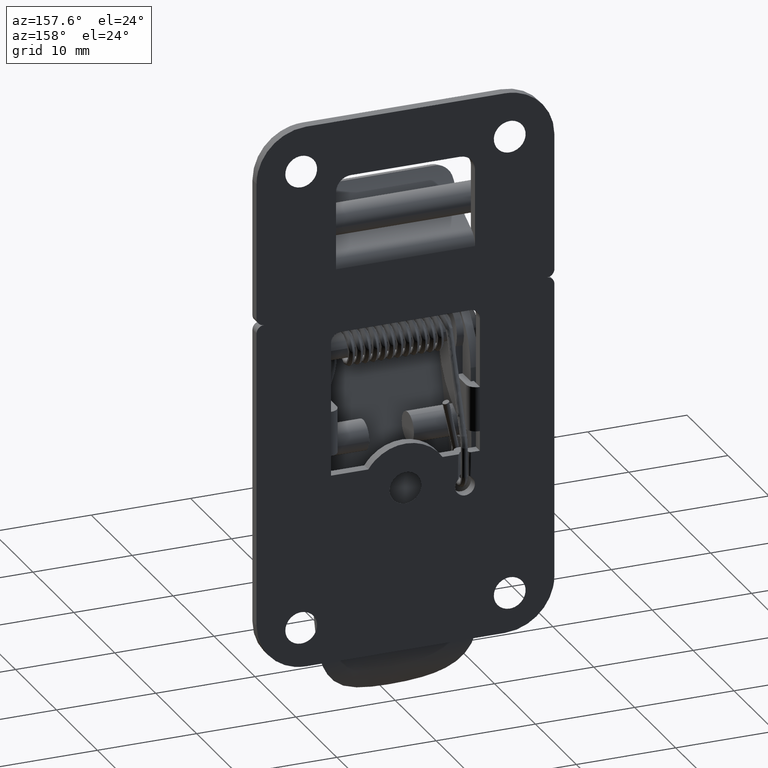
[diagram: clean part render]
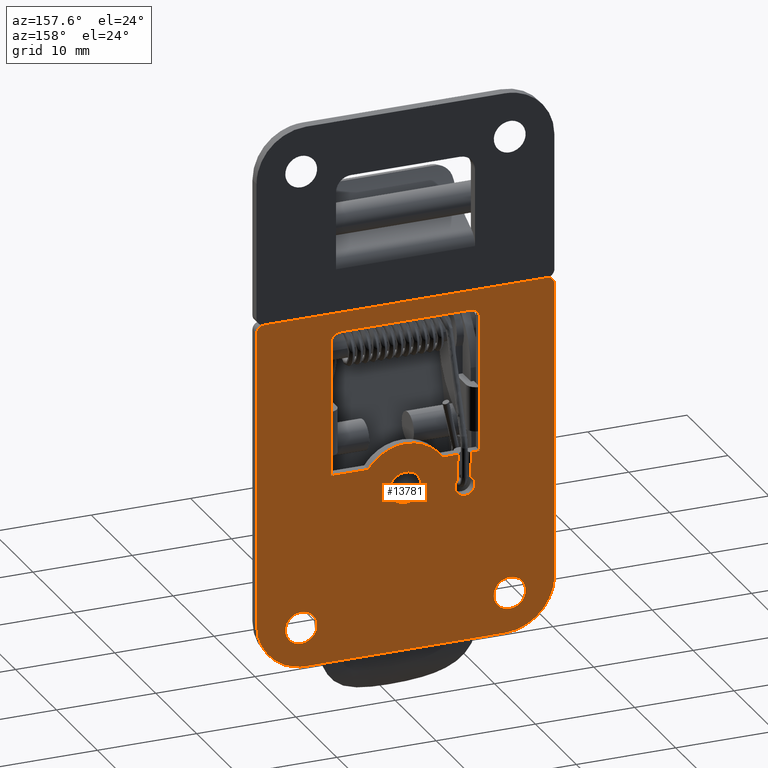
[diagram: same view with one face highlighted and labeled with its STEP entity id]
A machine part, auxiliary view. The second image highlights one B-rep face of the part: STEP entity #13781.
In plain terms, the highlighted face is a freeform B-spline surface patch.
Its self-contained STEP definition (entity closure, byte-faithful):
#11250=CARTESIAN_POINT('',(2.499999999892836,-1.597015677532759,-27.480444664066582));
#11251=VERTEX_POINT('',#11250);
#11257=CARTESIAN_POINT('',(2.500000000000000,0.0,-28.982766999999999));
#11258=VERTEX_POINT('',#11257);
#11259=CARTESIAN_POINT('',(2.500000000000000,0.0,-28.982766999999999));
#11260=CARTESIAN_POINT('',(2.500000000000000,-1.505129705530276,-28.982766999999992));
#11261=CARTESIAN_POINT('',(2.499999999892836,-1.597015677532759,-27.480444664066582));
#11269=(BOUNDED_CURVE()B_SPLINE_CURVE(2,(#11259,#11260,#11261),.UNSPECIFIED.,.F.,.U.)B_SPLINE_CURVE_WITH_KNOTS((3,3),(0.500000000000000,0.739332962068175),.UNSPECIFIED.)CURVE()GEOMETRIC_REPRESENTATION_ITEM()RATIONAL_B_SPLINE_CURVE((1.0,0.719603993486777,0.976072041300730))REPRESENTATION_ITEM(''));
#11270=EDGE_CURVE('',#11258,#11251,#11269,.T.);
#11272=CARTESIAN_POINT('',(2.499999999986664,1.588815242182591,-27.193912224442300));
#11273=VERTEX_POINT('',#11272);
#11274=CARTESIAN_POINT('',(2.499999999986664,1.588815242182591,-27.193912224442297));
#11275=CARTESIAN_POINT('',(2.500000000000000,1.600000000000000,-27.288008408450523));
#11276=CARTESIAN_POINT('',(2.500000000000000,1.600000000000000,-27.382767000000001));
#11277=CARTESIAN_POINT('',(2.500000000000000,1.600000000000000,-28.982766999999996));
#11278=CARTESIAN_POINT('',(2.500000000000000,0.0,-28.982766999999999));
#11286=(BOUNDED_CURVE()B_SPLINE_CURVE(2,(#11274,#11275,#11276,#11277,#11278),.UNSPECIFIED.,.F.,.U.)B_SPLINE_CURVE_WITH_KNOTS((3,2,3),(0.229562473493241,0.250000000000000,0.500000000000000),.UNSPECIFIED.)CURVE()GEOMETRIC_REPRESENTATION_ITEM()RATIONAL_B_SPLINE_CURVE((0.956026754143974,0.976055948307400,1.0,0.707106781186548,1.0))REPRESENTATION_ITEM(''));
#11287=EDGE_CURVE('',#11273,#11258,#11286,.T.);
#11331=CARTESIAN_POINT('',(2.500000000000000,0.0,-25.782767000000000));
#11332=VERTEX_POINT('',#11331);
#11333=CARTESIAN_POINT('',(2.500000000000000,0.0,-25.782767000000000));
#11334=CARTESIAN_POINT('',(2.500000000000000,1.421079241332479,-25.782767000000000));
#11335=CARTESIAN_POINT('',(2.499999999986664,1.588815242182591,-27.193912224442297));
#11343=(BOUNDED_CURVE()B_SPLINE_CURVE(2,(#11333,#11334,#11335),.UNSPECIFIED.,.F.,.U.)B_SPLINE_CURVE_WITH_KNOTS((3,3),(0.0,0.229562473493241),.UNSPECIFIED.)CURVE()GEOMETRIC_REPRESENTATION_ITEM()RATIONAL_B_SPLINE_CURVE((1.0,0.731050832879148,0.956026754143974))REPRESENTATION_ITEM(''));
#11344=EDGE_CURVE('',#11332,#11273,#11343,.T.);
#11346=CARTESIAN_POINT('',(2.499999999892836,-1.597015677532759,-27.480444664066578));
#11347=CARTESIAN_POINT('',(2.499999999999999,-1.600000000000000,-27.431651422084265));
#11348=CARTESIAN_POINT('',(2.500000000000000,-1.600000000000000,-27.382767000000001));
#11349=CARTESIAN_POINT('',(2.500000000000000,-1.600000000000000,-25.782767000000003));
#11350=CARTESIAN_POINT('',(2.500000000000000,0.0,-25.782767000000000));
#11358=(BOUNDED_CURVE()B_SPLINE_CURVE(2,(#11346,#11347,#11348,#11349,#11350),.UNSPECIFIED.,.F.,.U.)B_SPLINE_CURVE_WITH_KNOTS((3,2,3),(0.739332962068176,0.750000000000000,1.0),.UNSPECIFIED.)CURVE()GEOMETRIC_REPRESENTATION_ITEM()RATIONAL_B_SPLINE_CURVE((0.976072041300732,0.987502787699771,1.0,0.707106781186548,1.0))REPRESENTATION_ITEM(''));
#11359=EDGE_CURVE('',#11251,#11332,#11358,.T.);
#11436=CARTESIAN_POINT('',(2.499999999892838,8.902984322467237,-39.980444664066582));
#11437=VERTEX_POINT('',#11436);
#11443=CARTESIAN_POINT('',(2.500000000000000,10.500000000000000,-41.482767000000003));
#11444=VERTEX_POINT('',#11443);
#11445=CARTESIAN_POINT('',(2.500000000000000,10.500000000000000,-41.482767000000003));
#11446=CARTESIAN_POINT('',(2.500000000000001,8.994870294469706,-41.482766999999988));
#11447=CARTESIAN_POINT('',(2.499999999892838,8.902984322467237,-39.980444664066582));
#11455=(BOUNDED_CURVE()B_SPLINE_CURVE(2,(#11445,#11446,#11447),.UNSPECIFIED.,.F.,.U.)B_SPLINE_CURVE_WITH_KNOTS((3,3),(0.500000000000000,0.739332962068177),.UNSPECIFIED.)CURVE()GEOMETRIC_REPRESENTATION_ITEM()RATIONAL_B_SPLINE_CURVE((1.0,0.719603993486775,0.976072041300734))REPRESENTATION_ITEM(''));
#11456=EDGE_CURVE('',#11444,#11437,#11455,.T.);
#11458=CARTESIAN_POINT('',(2.499999999986665,12.088815242182591,-39.693912224442322));
#11459=VERTEX_POINT('',#11458);
#11460=CARTESIAN_POINT('',(2.499999999986664,12.088815242182596,-39.693912224442315));
#11461=CARTESIAN_POINT('',(2.500000000000000,12.099999999999998,-39.788008408450530));
#11462=CARTESIAN_POINT('',(2.500000000000000,12.100000000000000,-39.882767000000001));
#11463=CARTESIAN_POINT('',(2.500000000000000,12.099999999999998,-41.482766999999988));
#11464=CARTESIAN_POINT('',(2.500000000000000,10.500000000000000,-41.482767000000003));
#11472=(BOUNDED_CURVE()B_SPLINE_CURVE(2,(#11460,#11461,#11462,#11463,#11464),.UNSPECIFIED.,.F.,.U.)B_SPLINE_CURVE_WITH_KNOTS((3,2,3),(0.229562473493243,0.250000000000000,0.500000000000000),.UNSPECIFIED.)CURVE()GEOMETRIC_REPRESENTATION_ITEM()RATIONAL_B_SPLINE_CURVE((0.956026754143978,0.976055948307403,1.0,0.707106781186548,1.0))REPRESENTATION_ITEM(''));
#11473=EDGE_CURVE('',#11459,#11444,#11472,.T.);
#11517=CARTESIAN_POINT('',(2.500000000000000,10.500000000000000,-38.282767000000000));
#11518=VERTEX_POINT('',#11517);
#11519=CARTESIAN_POINT('',(2.500000000000000,10.500000000000000,-38.282767000000000));
#11520=CARTESIAN_POINT('',(2.500000000000000,11.921079241332496,-38.282766999999993));
#11521=CARTESIAN_POINT('',(2.499999999986665,12.088815242182600,-39.693912224442315));
#11529=(BOUNDED_CURVE()B_SPLINE_CURVE(2,(#11519,#11520,#11521),.UNSPECIFIED.,.F.,.U.)B_SPLINE_CURVE_WITH_KNOTS((3,3),(0.0,0.229562473493243),.UNSPECIFIED.)CURVE()GEOMETRIC_REPRESENTATION_ITEM()RATIONAL_B_SPLINE_CURVE((1.0,0.731050832879145,0.956026754143978))REPRESENTATION_ITEM(''));
#11530=EDGE_CURVE('',#11518,#11459,#11529,.T.);
#11532=CARTESIAN_POINT('',(2.499999999892838,8.902984322467237,-39.980444664066589));
#11533=CARTESIAN_POINT('',(2.500000000000000,8.900000000000000,-39.931651422084272));
#11534=CARTESIAN_POINT('',(2.500000000000000,8.900000000000000,-39.882767000000001));
#11535=CARTESIAN_POINT('',(2.500000000000000,8.900000000000002,-38.282767000000007));
#11536=CARTESIAN_POINT('',(2.500000000000000,10.500000000000000,-38.282767000000000));
#11544=(BOUNDED_CURVE()B_SPLINE_CURVE(2,(#11532,#11533,#11534,#11535,#11536),.UNSPECIFIED.,.F.,.U.)B_SPLINE_CURVE_WITH_KNOTS((3,2,3),(0.739332962068176,0.750000000000000,1.0),.UNSPECIFIED.)CURVE()GEOMETRIC_REPRESENTATION_ITEM()RATIONAL_B_SPLINE_CURVE((0.976072041300732,0.987502787699772,1.0,0.707106781186548,1.0))REPRESENTATION_ITEM(''));
#11545=EDGE_CURVE('',#11437,#11518,#11544,.T.);
#11622=CARTESIAN_POINT('',(2.499999999892838,-12.097015677532760,-39.980444664066582));
#11623=VERTEX_POINT('',#11622);
#11629=CARTESIAN_POINT('',(2.500000000000000,-10.500000000000000,-41.482767000000003));
#11630=VERTEX_POINT('',#11629);
#11631=CARTESIAN_POINT('',(2.500000000000000,-10.500000000000000,-41.482767000000003));
#11632=CARTESIAN_POINT('',(2.500000000000001,-12.005129705530294,-41.482766999999988));
#11633=CARTESIAN_POINT('',(2.499999999892838,-12.097015677532761,-39.980444664066582));
#11641=(BOUNDED_CURVE()B_SPLINE_CURVE(2,(#11631,#11632,#11633),.UNSPECIFIED.,.F.,.U.)B_SPLINE_CURVE_WITH_KNOTS((3,3),(0.500000000000000,0.739332962068177),.UNSPECIFIED.)CURVE()GEOMETRIC_REPRESENTATION_ITEM()RATIONAL_B_SPLINE_CURVE((1.0,0.719603993486775,0.976072041300734))REPRESENTATION_ITEM(''));
#11642=EDGE_CURVE('',#11630,#11623,#11641,.T.);
#11644=CARTESIAN_POINT('',(2.499999999986665,-8.911184757817406,-39.693912224442322));
#11645=VERTEX_POINT('',#11644);
#11646=CARTESIAN_POINT('',(2.499999999986664,-8.911184757817406,-39.693912224442315));
#11647=CARTESIAN_POINT('',(2.500000000000000,-8.900000000000002,-39.788008408450530));
#11648=CARTESIAN_POINT('',(2.500000000000000,-8.900000000000000,-39.882767000000001));
#11649=CARTESIAN_POINT('',(2.500000000000000,-8.900000000000002,-41.482766999999988));
#11650=CARTESIAN_POINT('',(2.500000000000000,-10.500000000000000,-41.482767000000003));
#11658=(BOUNDED_CURVE()B_SPLINE_CURVE(2,(#11646,#11647,#11648,#11649,#11650),.UNSPECIFIED.,.F.,.U.)B_SPLINE_CURVE_WITH_KNOTS((3,2,3),(0.229562473493243,0.250000000000000,0.500000000000000),.UNSPECIFIED.)CURVE()GEOMETRIC_REPRESENTATION_ITEM()RATIONAL_B_SPLINE_CURVE((0.956026754143978,0.976055948307403,1.0,0.707106781186548,1.0))REPRESENTATION_ITEM(''));
#11659=EDGE_CURVE('',#11645,#11630,#11658,.T.);
#11703=CARTESIAN_POINT('',(2.500000000000000,-10.500000000000000,-38.282767000000000));
#11704=VERTEX_POINT('',#11703);
#11705=CARTESIAN_POINT('',(2.500000000000000,-10.500000000000000,-38.282767000000000));
#11706=CARTESIAN_POINT('',(2.500000000000000,-9.078920758667504,-38.282766999999993));
#11707=CARTESIAN_POINT('',(2.499999999986665,-8.911184757817406,-39.693912224442315));
#11715=(BOUNDED_CURVE()B_SPLINE_CURVE(2,(#11705,#11706,#11707),.UNSPECIFIED.,.F.,.U.)B_SPLINE_CURVE_WITH_KNOTS((3,3),(0.0,0.229562473493243),.UNSPECIFIED.)CURVE()GEOMETRIC_REPRESENTATION_ITEM()RATIONAL_B_SPLINE_CURVE((1.0,0.731050832879145,0.956026754143978))REPRESENTATION_ITEM(''));
#11716=EDGE_CURVE('',#11704,#11645,#11715,.T.);
#11718=CARTESIAN_POINT('',(2.499999999892838,-12.097015677532767,-39.980444664066589));
#11719=CARTESIAN_POINT('',(2.500000000000000,-12.100000000000000,-39.931651422084272));
#11720=CARTESIAN_POINT('',(2.500000000000000,-12.100000000000000,-39.882767000000001));
#11721=CARTESIAN_POINT('',(2.500000000000000,-12.099999999999998,-38.282767000000007));
#11722=CARTESIAN_POINT('',(2.500000000000000,-10.500000000000000,-38.282767000000000));
#11730=(BOUNDED_CURVE()B_SPLINE_CURVE(2,(#11718,#11719,#11720,#11721,#11722),.UNSPECIFIED.,.F.,.U.)B_SPLINE_CURVE_WITH_KNOTS((3,2,3),(0.739332962068176,0.750000000000000,1.0),.UNSPECIFIED.)CURVE()GEOMETRIC_REPRESENTATION_ITEM()RATIONAL_B_SPLINE_CURVE((0.976072041300732,0.987502787699772,1.0,0.707106781186548,1.0))REPRESENTATION_ITEM(''));
#11731=EDGE_CURVE('',#11623,#11704,#11730,.T.);
#11831=CARTESIAN_POINT('',(2.499999999999945,5.975716783450991,-29.182472119219579));
#11832=VERTEX_POINT('',#11831);
#11838=CARTESIAN_POINT('',(2.499999999999945,6.588579013570620,-27.374327302320349));
#11839=VERTEX_POINT('',#11838);
#11840=CARTESIAN_POINT('',(2.499999999999945,5.975716783450992,-29.182472119219579));
#11841=CARTESIAN_POINT('',(2.499999999999945,6.044900751968928,-29.184152624067696));
#11842=CARTESIAN_POINT('',(2.499999999999945,6.113656689124503,-29.176287083851889));
#11843=CARTESIAN_POINT('',(2.499999999999945,6.792773381221526,-29.098597507156384));
#11844=CARTESIAN_POINT('',(2.499999999999945,6.966979063423422,-28.437622823752779));
#11845=CARTESIAN_POINT('',(2.499999999999945,7.141184745625318,-27.776648140349174));
#11846=CARTESIAN_POINT('',(2.499999999999945,6.588579013570630,-27.374327302320339));
#11854=(BOUNDED_CURVE()B_SPLINE_CURVE(2,(#11840,#11841,#11842,#11843,#11844,#11845,#11846),.UNSPECIFIED.,.F.,.U.)B_SPLINE_CURVE_WITH_KNOTS((3,2,2,3),(0.469983285768620,0.500000000000000,0.750000000000000,1.0),.UNSPECIFIED.)CURVE()GEOMETRIC_REPRESENTATION_ITEM()RATIONAL_B_SPLINE_CURVE((0.963141147429253,0.979055878926231,1.0,0.825562843818250,1.0,0.825562843818250,1.0))REPRESENTATION_ITEM(''));
#11855=EDGE_CURVE('',#11832,#11839,#11854,.T.);
#11907=CARTESIAN_POINT('',(2.499999999999945,5.244048978939260,-27.528138820223599));
#11908=VERTEX_POINT('',#11907);
#11924=CARTESIAN_POINT('',(2.499999999999945,5.347897611885264,-28.940897909154149));
#11925=VERTEX_POINT('',#11924);
#11926=CARTESIAN_POINT('',(2.499999999999945,5.244048978939262,-27.528138820223610));
#11927=CARTESIAN_POINT('',(2.499999999999945,4.796580496692248,-28.044866126650778));
#11928=CARTESIAN_POINT('',(2.499999999999945,5.115560246859865,-28.649421393599081));
#11929=CARTESIAN_POINT('',(2.499999999999945,5.204082906256221,-28.817196432466638));
#11930=CARTESIAN_POINT('',(2.499999999999945,5.347897611885263,-28.940897909154156));
#11938=(BOUNDED_CURVE()B_SPLINE_CURVE(2,(#11926,#11927,#11928,#11929,#11930),.UNSPECIFIED.,.F.,.U.)B_SPLINE_CURVE_WITH_KNOTS((3,2,3),(0.0,0.250000000000000,0.329384126811610),.UNSPECIFIED.)CURVE()GEOMETRIC_REPRESENTATION_ITEM()RATIONAL_B_SPLINE_CURVE((1.0,0.825562843818250,1.0,0.944609834692046,0.924396468639473))REPRESENTATION_ITEM(''));
#11939=EDGE_CURVE('',#11908,#11925,#11938,.T.);
#11977=CARTESIAN_POINT('',(2.499999999999945,5.347897611885264,-28.940897909154153));
#11978=CARTESIAN_POINT('',(2.499999999999945,5.618667531001079,-29.173799257390275));
#11979=CARTESIAN_POINT('',(2.499999999999945,5.975716783450991,-29.182472119219579));
#11987=(BOUNDED_CURVE()B_SPLINE_CURVE(2,(#11977,#11978,#11979),.UNSPECIFIED.,.F.,.U.)B_SPLINE_CURVE_WITH_KNOTS((3,3),(0.329384126811610,0.469983285768621),.UNSPECIFIED.)CURVE()GEOMETRIC_REPRESENTATION_ITEM()RATIONAL_B_SPLINE_CURVE((0.924396468639472,0.888596084093751,0.963141147429253))REPRESENTATION_ITEM(''));
#11988=EDGE_CURVE('',#11925,#11832,#11987,.T.);
#12010=CARTESIAN_POINT('',(2.500000000000000,6.632070605775250,-24.882766999999902));
#12011=VERTEX_POINT('',#12010);
#12031=CARTESIAN_POINT('',(2.500000000000000,6.632070605775250,-24.882766999999902));
#12032=CARTESIAN_POINT('',(2.499999999999945,6.588579013570620,-27.374327302320349));
#12033=QUASI_UNIFORM_CURVE('',1,(#12031,#12032),.UNSPECIFIED.,.F.,.U.);
#12034=EDGE_CURVE('',#12011,#11839,#12033,.T.);
#12061=CARTESIAN_POINT('',(2.500000000000000,5.290225438055111,-24.882766999999902));
#12062=VERTEX_POINT('',#12061);
#12076=CARTESIAN_POINT('',(2.499999999999945,5.244048978939260,-27.528138820223599));
#12077=CARTESIAN_POINT('',(2.500000000000000,5.290225438055111,-24.882766999999902));
#12078=QUASI_UNIFORM_CURVE('',1,(#12076,#12077),.UNSPECIFIED.,.F.,.U.);
#12079=EDGE_CURVE('',#11908,#12062,#12078,.T.);
#12315=CARTESIAN_POINT('',(2.499999999999945,-7.500000000000000,-18.382766999999902));
#12316=VERTEX_POINT('',#12315);
#12334=CARTESIAN_POINT('',(2.499999999999945,-7.500000000000000,-22.882767000000001));
#12335=VERTEX_POINT('',#12334);
#12336=CARTESIAN_POINT('',(2.499999999999945,-7.500000000000000,-22.882767000000001));
#12337=CARTESIAN_POINT('',(2.499999999999945,-7.500000000000000,-18.382766999999902));
#12338=QUASI_UNIFORM_CURVE('',1,(#12336,#12337),.UNSPECIFIED.,.F.,.U.);
#12339=EDGE_CURVE('',#12335,#12316,#12338,.T.);
#12385=CARTESIAN_POINT('',(2.499999999999945,7.500000000000000,-22.882767000000001));
#12386=VERTEX_POINT('',#12385);
#12402=CARTESIAN_POINT('',(2.499999999999945,7.500000000000000,-18.382766999999902));
#12403=VERTEX_POINT('',#12402);
#12404=CARTESIAN_POINT('',(2.499999999999945,7.500000000000000,-18.382766999999902));
#12405=CARTESIAN_POINT('',(2.499999999999945,7.500000000000000,-22.882767000000001));
#12406=QUASI_UNIFORM_CURVE('',1,(#12404,#12405),.UNSPECIFIED.,.F.,.U.);
#12407=EDGE_CURVE('',#12403,#12386,#12406,.T.);
#12864=CARTESIAN_POINT('',(2.500000000000000,6.500000000000110,-10.382766999999999));
#12865=VERTEX_POINT('',#12864);
#12866=CARTESIAN_POINT('',(2.499999999999945,-6.499999999999890,-10.382766999999999));
#12867=VERTEX_POINT('',#12866);
#12868=CARTESIAN_POINT('',(2.500000000000000,6.500000000000110,-10.382766999999999));
#12869=CARTESIAN_POINT('',(2.499999999999945,-6.499999999999890,-10.382766999999999));
#12870=QUASI_UNIFORM_CURVE('',1,(#12868,#12869),.UNSPECIFIED.,.F.,.U.);
#12871=EDGE_CURVE('',#12865,#12867,#12870,.T.);
#12909=CARTESIAN_POINT('',(2.499999999999945,7.500000000000000,-11.382766999999919));
#12910=VERTEX_POINT('',#12909);
#12911=CARTESIAN_POINT('',(2.499999999999945,7.500000000000000,-11.382766999999919));
#12912=CARTESIAN_POINT('',(2.499999999999945,7.500000000000110,-10.382766999999918));
#12913=CARTESIAN_POINT('',(2.500000000000000,6.500000000000110,-10.382766999999999));
#12921=(BOUNDED_CURVE()B_SPLINE_CURVE(2,(#12911,#12912,#12913),.UNSPECIFIED.,.F.,.U.)CURVE()GEOMETRIC_REPRESENTATION_ITEM()QUASI_UNIFORM_CURVE()RATIONAL_B_SPLINE_CURVE((1.0,0.707106781186548,1.0))REPRESENTATION_ITEM(''));
#12922=EDGE_CURVE('',#12910,#12865,#12921,.T.);
#12953=CARTESIAN_POINT('',(2.499999999999945,7.500000000000000,-18.382766999999902));
#12954=CARTESIAN_POINT('',(2.499999999999945,7.500000000000000,-11.382766999999919));
#12955=QUASI_UNIFORM_CURVE('',1,(#12953,#12954),.UNSPECIFIED.,.F.,.U.);
#12956=EDGE_CURVE('',#12403,#12910,#12955,.T.);
#13035=CARTESIAN_POINT('',(2.499999999999945,7.500000000000000,-24.882766999999902));
#13036=VERTEX_POINT('',#13035);
#13037=CARTESIAN_POINT('',(2.499999999999945,7.500000000000000,-24.882766999999902));
#13038=CARTESIAN_POINT('',(2.499999999999945,7.500000000000000,-22.882767000000001));
#13039=QUASI_UNIFORM_CURVE('',1,(#13037,#13038),.UNSPECIFIED.,.F.,.U.);
#13040=EDGE_CURVE('',#13036,#12386,#13039,.T.);
#13072=CARTESIAN_POINT('',(2.499999999999945,3.741657386773875,-24.882766999999902));
#13073=VERTEX_POINT('',#13072);
#13074=CARTESIAN_POINT('',(2.499999999999945,-3.741657386773875,-24.882766999999902));
#13075=VERTEX_POINT('',#13074);
#13076=CARTESIAN_POINT('',(2.499999999999945,3.741657386773875,-24.882766999999902));
#13077=CARTESIAN_POINT('',(2.499999999999945,2.405351177211743,-22.882766999999998));
#13078=CARTESIAN_POINT('',(2.499999999999945,0.0,-22.882767000000001));
#13079=CARTESIAN_POINT('',(2.499999999999945,-2.405351177211742,-22.882766999999998));
#13080=CARTESIAN_POINT('',(2.499999999999945,-3.741657386773874,-24.882766999999902));
#13088=(BOUNDED_CURVE()B_SPLINE_CURVE(2,(#13076,#13077,#13078,#13079,#13080),.UNSPECIFIED.,.F.,.U.)B_SPLINE_CURVE_WITH_KNOTS((3,2,3),(0.0,0.500000000000000,1.0),.UNSPECIFIED.)CURVE()GEOMETRIC_REPRESENTATION_ITEM()RATIONAL_B_SPLINE_CURVE((1.0,0.881917103688203,1.0,0.881917103688203,1.0))REPRESENTATION_ITEM(''));
#13089=EDGE_CURVE('',#13073,#13075,#13088,.T.);
#13128=CARTESIAN_POINT('',(2.499999999999945,-7.500000000000000,-24.882766999999902));
#13129=VERTEX_POINT('',#13128);
#13130=CARTESIAN_POINT('',(2.499999999999945,-7.500000000000000,-24.882766999999902));
#13131=CARTESIAN_POINT('',(2.499999999999945,-3.741657386773875,-24.882766999999902));
#13132=QUASI_UNIFORM_CURVE('',1,(#13130,#13131),.UNSPECIFIED.,.F.,.U.);
#13133=EDGE_CURVE('',#13129,#13075,#13132,.T.);
#13156=CARTESIAN_POINT('',(2.499999999999945,-7.500000000000000,-22.882767000000001));
#13157=CARTESIAN_POINT('',(2.499999999999945,-7.500000000000000,-24.882766999999902));
#13158=QUASI_UNIFORM_CURVE('',1,(#13156,#13157),.UNSPECIFIED.,.F.,.U.);
#13159=EDGE_CURVE('',#12335,#13129,#13158,.T.);
#13238=CARTESIAN_POINT('',(2.499999999999945,-7.500000000000000,-11.382766999999919));
#13239=VERTEX_POINT('',#13238);
#13240=CARTESIAN_POINT('',(2.499999999999945,-7.500000000000000,-11.382766999999919));
#13241=CARTESIAN_POINT('',(2.499999999999945,-7.500000000000000,-18.382766999999902));
#13242=QUASI_UNIFORM_CURVE('',1,(#13240,#13241),.UNSPECIFIED.,.F.,.U.);
#13243=EDGE_CURVE('',#13239,#12316,#13242,.T.);
#13275=CARTESIAN_POINT('',(2.499999999999945,-6.499999999999890,-10.382766999999999));
#13276=CARTESIAN_POINT('',(2.499999999999945,-7.499999999999891,-10.382766999999918));
#13277=CARTESIAN_POINT('',(2.499999999999945,-7.500000000000000,-11.382766999999919));
#13285=(BOUNDED_CURVE()B_SPLINE_CURVE(2,(#13275,#13276,#13277),.UNSPECIFIED.,.F.,.U.)CURVE()GEOMETRIC_REPRESENTATION_ITEM()QUASI_UNIFORM_CURVE()RATIONAL_B_SPLINE_CURVE((1.0,0.707106781186548,1.0))REPRESENTATION_ITEM(''));
#13286=EDGE_CURVE('',#12867,#13239,#13285,.T.);
#13311=CARTESIAN_POINT('',(2.499999999999945,14.250000000000000,-8.382766999999999));
#13312=VERTEX_POINT('',#13311);
#13313=CARTESIAN_POINT('',(2.499999999999945,-14.250000000000000,-8.382766999999999));
#13314=VERTEX_POINT('',#13313);
#13315=CARTESIAN_POINT('',(2.499999999999945,14.250000000000000,-8.382766999999999));
#13316=CARTESIAN_POINT('',(2.499999999999945,-14.250000000000000,-8.382766999999999));
#13317=QUASI_UNIFORM_CURVE('',1,(#13315,#13316),.UNSPECIFIED.,.F.,.U.);
#13318=EDGE_CURVE('',#13312,#13314,#13317,.T.);
#13356=CARTESIAN_POINT('',(2.499999999999945,15.0,-9.132766999999999));
#13357=VERTEX_POINT('',#13356);
#13358=CARTESIAN_POINT('',(2.499999999999945,15.0,-9.132766999999999));
#13359=CARTESIAN_POINT('',(2.499999999999945,15.000000000000009,-8.382766999999999));
#13360=CARTESIAN_POINT('',(2.499999999999945,14.250000000000000,-8.382766999999999));
#13368=(BOUNDED_CURVE()B_SPLINE_CURVE(2,(#13358,#13359,#13360),.UNSPECIFIED.,.F.,.U.)CURVE()GEOMETRIC_REPRESENTATION_ITEM()QUASI_UNIFORM_CURVE()RATIONAL_B_SPLINE_CURVE((1.0,0.707106781186548,1.0))REPRESENTATION_ITEM(''));
#13369=EDGE_CURVE('',#13357,#13312,#13368,.T.);
#13400=CARTESIAN_POINT('',(2.499999999999945,15.0,-38.882767000000001));
#13401=VERTEX_POINT('',#13400);
#13402=CARTESIAN_POINT('',(2.499999999999945,15.0,-38.882767000000001));
#13403=CARTESIAN_POINT('',(2.499999999999945,15.0,-9.132766999999999));
#13404=QUASI_UNIFORM_CURVE('',1,(#13402,#13403),.UNSPECIFIED.,.F.,.U.);
#13405=EDGE_CURVE('',#13401,#13357,#13404,.T.);
#13437=CARTESIAN_POINT('',(2.499999999999945,10.0,-43.882767000000001));
#13438=VERTEX_POINT('',#13437);
#13439=CARTESIAN_POINT('',(2.499999999999945,10.0,-43.882766999999987));
#13440=CARTESIAN_POINT('',(2.499999999999945,14.999999999999995,-43.882767000000001));
#13441=CARTESIAN_POINT('',(2.499999999999945,15.0,-38.882767000000001));
#13449=(BOUNDED_CURVE()B_SPLINE_CURVE(2,(#13439,#13440,#13441),.UNSPECIFIED.,.F.,.U.)CURVE()GEOMETRIC_REPRESENTATION_ITEM()QUASI_UNIFORM_CURVE()RATIONAL_B_SPLINE_CURVE((1.0,0.707106781186548,1.0))REPRESENTATION_ITEM(''));
#13450=EDGE_CURVE('',#13438,#13401,#13449,.T.);
#13481=CARTESIAN_POINT('',(2.499999999999945,-9.999999999999890,-43.882767000000001));
#13482=VERTEX_POINT('',#13481);
#13483=CARTESIAN_POINT('',(2.499999999999945,-9.999999999999890,-43.882767000000001));
#13484=CARTESIAN_POINT('',(2.499999999999945,10.0,-43.882767000000001));
#13485=QUASI_UNIFORM_CURVE('',1,(#13483,#13484),.UNSPECIFIED.,.F.,.U.);
#13486=EDGE_CURVE('',#13482,#13438,#13485,.T.);
#13518=CARTESIAN_POINT('',(2.499999999999945,-15.0,-38.882767000000001));
#13519=VERTEX_POINT('',#13518);
#13520=CARTESIAN_POINT('',(2.499999999999945,-14.999999999999890,-38.882767000000001));
#13521=CARTESIAN_POINT('',(2.499999999999945,-14.999999999999897,-43.882767000000001));
#13522=CARTESIAN_POINT('',(2.499999999999945,-9.999999999999890,-43.882766999999987));
#13530=(BOUNDED_CURVE()B_SPLINE_CURVE(2,(#13520,#13521,#13522),.UNSPECIFIED.,.F.,.U.)CURVE()GEOMETRIC_REPRESENTATION_ITEM()QUASI_UNIFORM_CURVE()RATIONAL_B_SPLINE_CURVE((1.0,0.707106781186548,1.0))REPRESENTATION_ITEM(''));
#13531=EDGE_CURVE('',#13519,#13482,#13530,.T.);
#13562=CARTESIAN_POINT('',(2.499999999999945,-15.0,-9.132766999999999));
#13563=VERTEX_POINT('',#13562);
#13564=CARTESIAN_POINT('',(2.499999999999945,-15.0,-9.132766999999999));
#13565=CARTESIAN_POINT('',(2.499999999999945,-15.0,-38.882767000000001));
#13566=QUASI_UNIFORM_CURVE('',1,(#13564,#13565),.UNSPECIFIED.,.F.,.U.);
#13567=EDGE_CURVE('',#13563,#13519,#13566,.T.);
#13599=CARTESIAN_POINT('',(2.499999999999945,-14.250000000000000,-8.382766999999999));
#13600=CARTESIAN_POINT('',(2.499999999999945,-15.000000000000009,-8.382766999999999));
#13601=CARTESIAN_POINT('',(2.499999999999945,-15.0,-9.132766999999999));
#13609=(BOUNDED_CURVE()B_SPLINE_CURVE(2,(#13599,#13600,#13601),.UNSPECIFIED.,.F.,.U.)CURVE()GEOMETRIC_REPRESENTATION_ITEM()QUASI_UNIFORM_CURVE()RATIONAL_B_SPLINE_CURVE((1.0,0.707106781186548,1.0))REPRESENTATION_ITEM(''));
#13610=EDGE_CURVE('',#13314,#13563,#13609,.T.);
#13705=CARTESIAN_POINT('',(2.499999999999945,3.741657386773875,-24.882766999999902));
#13706=CARTESIAN_POINT('',(2.500000000000000,5.290225438055111,-24.882766999999902));
#13707=QUASI_UNIFORM_CURVE('',1,(#13705,#13706),.UNSPECIFIED.,.F.,.U.);
#13708=EDGE_CURVE('',#13073,#12062,#13707,.T.);
#13713=CARTESIAN_POINT('',(2.500000000000000,6.632070605775250,-24.882766999999902));
#13714=CARTESIAN_POINT('',(2.499999999999945,7.500000000000000,-24.882766999999902));
#13715=QUASI_UNIFORM_CURVE('',1,(#13713,#13714),.UNSPECIFIED.,.F.,.U.);
#13716=EDGE_CURVE('',#12011,#13036,#13715,.T.);
#13728=CARTESIAN_POINT('',(2.500000000000000,-16.498499941854181,-6.609541735557286));
#13729=CARTESIAN_POINT('',(2.500000000000000,16.498500746516889,-6.609541735557286));
#13730=CARTESIAN_POINT('',(2.500000000000000,-16.498499941854181,-45.655992899232182));
#13731=CARTESIAN_POINT('',(2.500000000000000,16.498500746516889,-45.655992899232182));
#13732=B_SPLINE_SURFACE_WITH_KNOTS('',1,1,((#13728,#13730),(#13729,#13731)),.UNSPECIFIED.,.F.,.F.,.U.,(2,2),(2,2),(0.0,32.997000688371060),(0.0,39.046451163674902),.UNSPECIFIED.);
#13733=ORIENTED_EDGE('',*,*,#13610,.T.);
#13734=ORIENTED_EDGE('',*,*,#13567,.T.);
#13735=ORIENTED_EDGE('',*,*,#13531,.T.);
#13736=ORIENTED_EDGE('',*,*,#13486,.T.);
#13737=ORIENTED_EDGE('',*,*,#13450,.T.);
#13738=ORIENTED_EDGE('',*,*,#13405,.T.);
#13739=ORIENTED_EDGE('',*,*,#13369,.T.);
#13740=ORIENTED_EDGE('',*,*,#13318,.T.);
#13741=EDGE_LOOP('',(#13733,#13734,#13735,#13736,#13737,#13738,#13739,#13740));
#13742=FACE_OUTER_BOUND('',#13741,.T.);
#13743=ORIENTED_EDGE('',*,*,#12079,.T.);
#13744=ORIENTED_EDGE('',*,*,#13708,.F.);
#13745=ORIENTED_EDGE('',*,*,#13089,.T.);
#13746=ORIENTED_EDGE('',*,*,#13133,.F.);
#13747=ORIENTED_EDGE('',*,*,#13159,.F.);
#13748=ORIENTED_EDGE('',*,*,#12339,.T.);
#13749=ORIENTED_EDGE('',*,*,#13243,.F.);
#13750=ORIENTED_EDGE('',*,*,#13286,.F.);
#13751=ORIENTED_EDGE('',*,*,#12871,.F.);
#13752=ORIENTED_EDGE('',*,*,#12922,.F.);
#13753=ORIENTED_EDGE('',*,*,#12956,.F.);
#13754=ORIENTED_EDGE('',*,*,#12407,.T.);
#13755=ORIENTED_EDGE('',*,*,#13040,.F.);
#13756=ORIENTED_EDGE('',*,*,#13716,.F.);
#13757=ORIENTED_EDGE('',*,*,#12034,.T.);
#13758=ORIENTED_EDGE('',*,*,#11855,.F.);
#13759=ORIENTED_EDGE('',*,*,#11988,.F.);
#13760=ORIENTED_EDGE('',*,*,#11939,.F.);
#13761=EDGE_LOOP('',(#13743,#13744,#13745,#13746,#13747,#13748,#13749,#13750,#13751,#13752,#13753,#13754,#13755,#13756,#13757,#13758,#13759,#13760));
#13762=FACE_BOUND('',#13761,.T.);
#13763=ORIENTED_EDGE('',*,*,#11642,.T.);
#13764=ORIENTED_EDGE('',*,*,#11731,.T.);
#13765=ORIENTED_EDGE('',*,*,#11716,.T.);
#13766=ORIENTED_EDGE('',*,*,#11659,.T.);
#13767=EDGE_LOOP('',(#13763,#13764,#13765,#13766));
#13768=FACE_BOUND('',#13767,.T.);
#13769=ORIENTED_EDGE('',*,*,#11456,.T.);
#13770=ORIENTED_EDGE('',*,*,#11545,.T.);
#13771=ORIENTED_EDGE('',*,*,#11530,.T.);
#13772=ORIENTED_EDGE('',*,*,#11473,.T.);
#13773=EDGE_LOOP('',(#13769,#13770,#13771,#13772));
#13774=FACE_BOUND('',#13773,.T.);
#13775=ORIENTED_EDGE('',*,*,#11270,.T.);
#13776=ORIENTED_EDGE('',*,*,#11359,.T.);
#13777=ORIENTED_EDGE('',*,*,#11344,.T.);
#13778=ORIENTED_EDGE('',*,*,#11287,.T.);
#13779=EDGE_LOOP('',(#13775,#13776,#13777,#13778));
#13780=FACE_BOUND('',#13779,.T.);
#13781=ADVANCED_FACE('',(#13742,#13762,#13768,#13774,#13780),#13732,.F.);